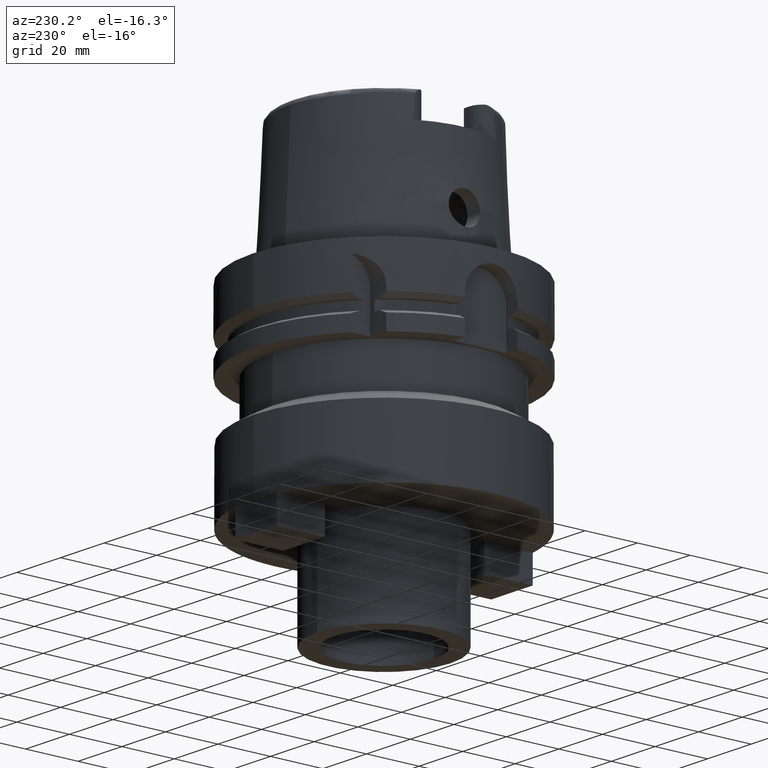
[diagram: clean part render]
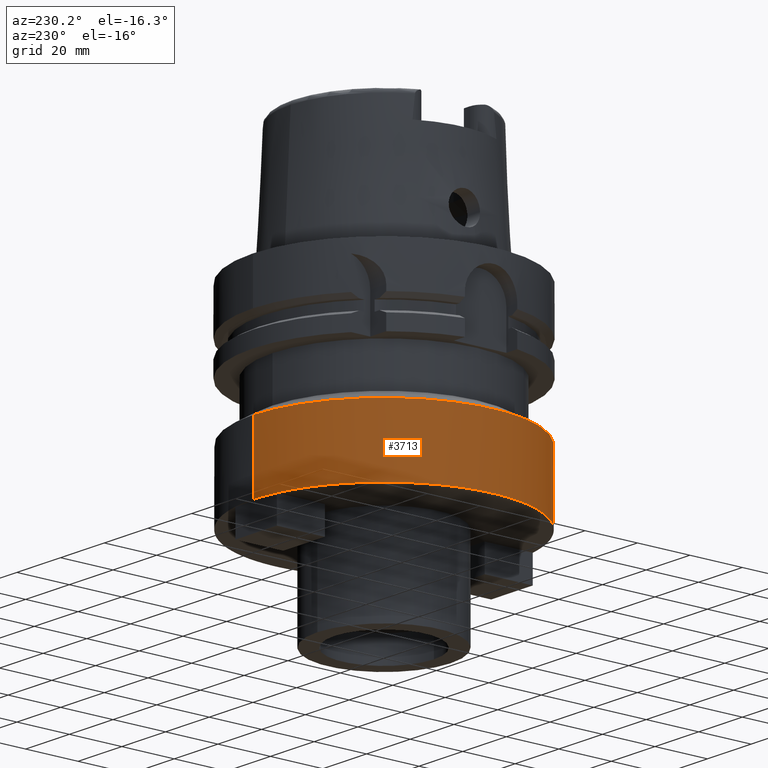
[diagram: same view with one face highlighted and labeled with its STEP entity id]
A machine part, auxiliary view. The second image highlights one B-rep face of the part: STEP entity #3713.
In plain terms, the highlighted cylindrical surface (partial cylindrical patch) has radius 49.75 mm, axis along (0, 0, -1).
Its self-contained STEP definition (entity closure, byte-faithful):
#1143=CARTESIAN_POINT('',(0.E0,1.935554266052E-14,-7.5E1));
#1144=DIRECTION('',(0.E0,0.E0,1.E0));
#1145=DIRECTION('',(0.E0,1.E0,0.E0));
#1146=AXIS2_PLACEMENT_3D('',#1143,#1144,#1145);
#1195=DIRECTION('',(0.E0,2.064394147639E-14,-1.E0));
#1196=VECTOR('',#1195,2.581421054838E1);
#1197=CARTESIAN_POINT('',(0.E0,4.975E1,-4.918578945162E1));
#1198=LINE('',#1197,#1196);
#1202=DIRECTION('',(0.E0,-2.009343637036E-14,-1.E0));
#1203=VECTOR('',#1202,2.581421054838E1);
#1204=CARTESIAN_POINT('',(0.E0,-4.975E1,-4.918578945162E1));
#1205=LINE('',#1204,#1203);
#1224=CARTESIAN_POINT('',(0.E0,0.E0,-4.918578945162E1));
#1225=DIRECTION('',(0.E0,0.E0,-1.E0));
#1226=DIRECTION('',(0.E0,-1.E0,0.E0));
#1227=AXIS2_PLACEMENT_3D('',#1224,#1225,#1226);
#2626=CARTESIAN_POINT('',(0.E0,-4.975E1,-7.5E1));
#2627=CARTESIAN_POINT('',(0.E0,4.975E1,-7.5E1));
#2628=VERTEX_POINT('',#2626);
#2629=VERTEX_POINT('',#2627);
#2646=CARTESIAN_POINT('',(0.E0,4.975E1,-4.918578945162E1));
#2647=VERTEX_POINT('',#2646);
#2648=CARTESIAN_POINT('',(0.E0,-4.975E1,-4.918578945162E1));
#2649=VERTEX_POINT('',#2648);
#3701=CARTESIAN_POINT('',(0.E0,1.935554266052E-14,5.805E1));
#3702=DIRECTION('',(0.E0,0.E0,-1.E0));
#3703=DIRECTION('',(0.E0,-1.E0,0.E0));
#3704=AXIS2_PLACEMENT_3D('',#3701,#3702,#3703);
#3705=CYLINDRICAL_SURFACE('',#3704,4.975E1);
#3706=ORIENTED_EDGE('',*,*,#3691,.F.);
#3708=ORIENTED_EDGE('',*,*,#3707,.F.);
#3709=ORIENTED_EDGE('',*,*,#3694,.T.);
#3710=ORIENTED_EDGE('',*,*,#3657,.F.);
#3711=EDGE_LOOP('',(#3706,#3708,#3709,#3710));
#3712=FACE_OUTER_BOUND('',#3711,.F.);
#1147=CIRCLE('',#1146,4.975E1);
#1228=CIRCLE('',#1227,4.975E1);
#3657=EDGE_CURVE('',#2629,#2628,#1147,.T.);
#3691=EDGE_CURVE('',#2647,#2629,#1198,.T.);
#3694=EDGE_CURVE('',#2649,#2628,#1205,.T.);
#3707=EDGE_CURVE('',#2649,#2647,#1228,.T.);
#3713=ADVANCED_FACE('',(#3712),#3705,.T.);